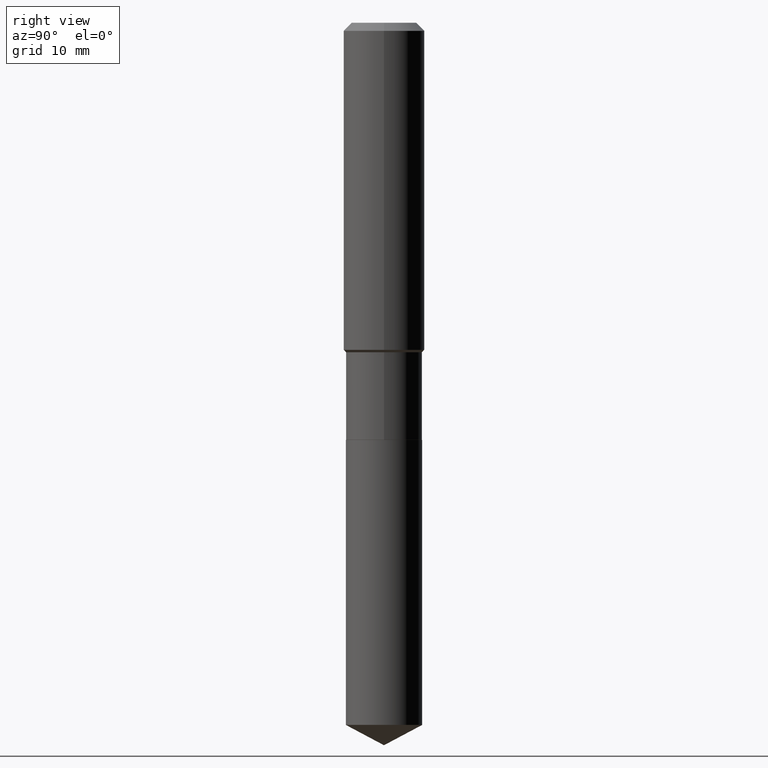
[diagram: clean part render]
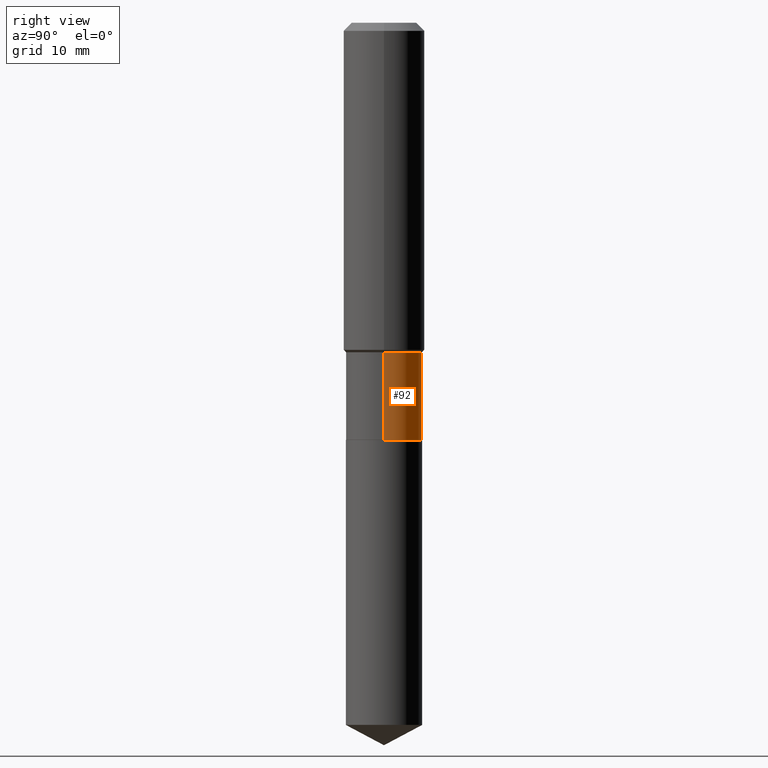
[diagram: same view with one face highlighted and labeled with its STEP entity id]
A machine part, right view. The second image highlights one B-rep face of the part: STEP entity #92.
In plain terms, the highlighted cylindrical surface (partial cylindrical patch) has radius 4.7003 mm, axis along (-0, 0, 1).
Its self-contained STEP definition (entity closure, byte-faithful):
#1 = LINE ( 'NONE', #414, #420 ) ;
#18 = EDGE_CURVE ( 'NONE', #284, #47, #335, .T. ) ;
#35 = FACE_OUTER_BOUND ( 'NONE', #360, .T. ) ;
#45 = CIRCLE ( 'NONE', #386, 0.1850499999999999090 ) ;
#46 = CARTESIAN_POINT ( 'NONE',  ( 0.1850499999999999923, -8.355813140119411270E-15, -2.023099999999999898 ) ) ;
#47 = VERTEX_POINT ( 'NONE', #332 ) ;
#63 = CARTESIAN_POINT ( 'NONE',  ( 4.947427941793149075E-29, -7.063615896613566997E-15, -2.023099999999999898 ) ) ;
#66 = DIRECTION ( 'NONE',  ( 1.000000000000000000, -6.982962677686267499E-15, 0.000000000000000000 ) ) ;
#70 = ORIENTED_EDGE ( 'NONE', *, *, #481, .F. ) ;
#75 = DIRECTION ( 'NONE',  ( -2.445468806185136877E-29, 3.491481338843145188E-15, 1.000000000000000000 ) ) ;
#92 = ADVANCED_FACE ( 'NONE', ( #35 ), #180, .T. ) ;
#99 = CARTESIAN_POINT ( 'NONE',  ( 3.907859152283848022E-29, -5.579387179471346287E-15, -1.597999999999999643 ) ) ;
#133 = CARTESIAN_POINT ( 'NONE',  ( 0.000000000000000000, 0.000000000000000000, 0.000000000000000000 ) ) ;
#136 = VECTOR ( 'NONE', #216, 39.37007874015748143 ) ;
#150 = ORIENTED_EDGE ( 'NONE', *, *, #18, .F. ) ;
#169 = DIRECTION ( 'NONE',  ( -2.445468806185136597E-29, 3.491481338843145583E-15, 1.000000000000000000 ) ) ;
#170 = CARTESIAN_POINT ( 'NONE',  ( -0.1850499999999999923, -5.006642205518390514E-15, -2.023099999999999898 ) ) ;
#180 = CYLINDRICAL_SURFACE ( 'NONE', #385, 0.1850499999999999368 ) ;
#205 = DIRECTION ( 'NONE',  ( 1.000000000000000000, -6.982962677686267499E-15, 4.876176775795935793E-29 ) ) ;
#215 = CARTESIAN_POINT ( 'NONE',  ( -0.1850499999999999090, -5.006642205518391303E-15, -1.597999999999999643 ) ) ;
#216 = DIRECTION ( 'NONE',  ( -2.445468806185136877E-29, 3.491481338843145188E-15, 1.000000000000000000 ) ) ;
#265 = VERTEX_POINT ( 'NONE', #170 ) ;
#284 = VERTEX_POINT ( 'NONE', #46 ) ;
#289 = CIRCLE ( 'NONE', #353, 0.1850499999999999923 ) ;
#327 = EDGE_CURVE ( 'NONE', #265, #460, #1, .T. ) ;
#332 = CARTESIAN_POINT ( 'NONE',  ( 0.1850499999999999090, -6.871584422977188194E-15, -1.597999999999999643 ) ) ;
#335 = LINE ( 'NONE', #489, #136 ) ;
#353 = AXIS2_PLACEMENT_3D ( 'NONE', #63, #482, #66 ) ;
#360 = EDGE_LOOP ( 'NONE', ( #387, #390, #70, #150 ) ) ;
#385 = AXIS2_PLACEMENT_3D ( 'NONE', #133, #169, #205 ) ;
#386 = AXIS2_PLACEMENT_3D ( 'NONE', #99, #403, #488 ) ;
#387 = ORIENTED_EDGE ( 'NONE', *, *, #399, .T. ) ;
#390 = ORIENTED_EDGE ( 'NONE', *, *, #327, .T. ) ;
#399 = EDGE_CURVE ( 'NONE', #284, #265, #289, .T. ) ;
#403 = DIRECTION ( 'NONE',  ( -2.445468806185136597E-29, 3.491481338843145583E-15, 1.000000000000000000 ) ) ;
#414 = CARTESIAN_POINT ( 'NONE',  ( -0.1850499999999999368, 1.314859332524064945E-15, -9.102489384516700747E-30 ) ) ;
#420 = VECTOR ( 'NONE', #75, 39.37007874015748143 ) ;
#460 = VERTEX_POINT ( 'NONE', #215 ) ;
#481 = EDGE_CURVE ( 'NONE', #47, #460, #45, .T. ) ;
#482 = DIRECTION ( 'NONE',  ( -2.445468806185136597E-29, 3.491481338843145583E-15, 1.000000000000000000 ) ) ;
#488 = DIRECTION ( 'NONE',  ( 1.000000000000000000, -6.982962677686265133E-15, 0.000000000000000000 ) ) ;
#489 = CARTESIAN_POINT ( 'NONE',  ( 0.1850499999999999368, -1.292197243505843287E-15, 9.023365123610376264E-30 ) ) ;